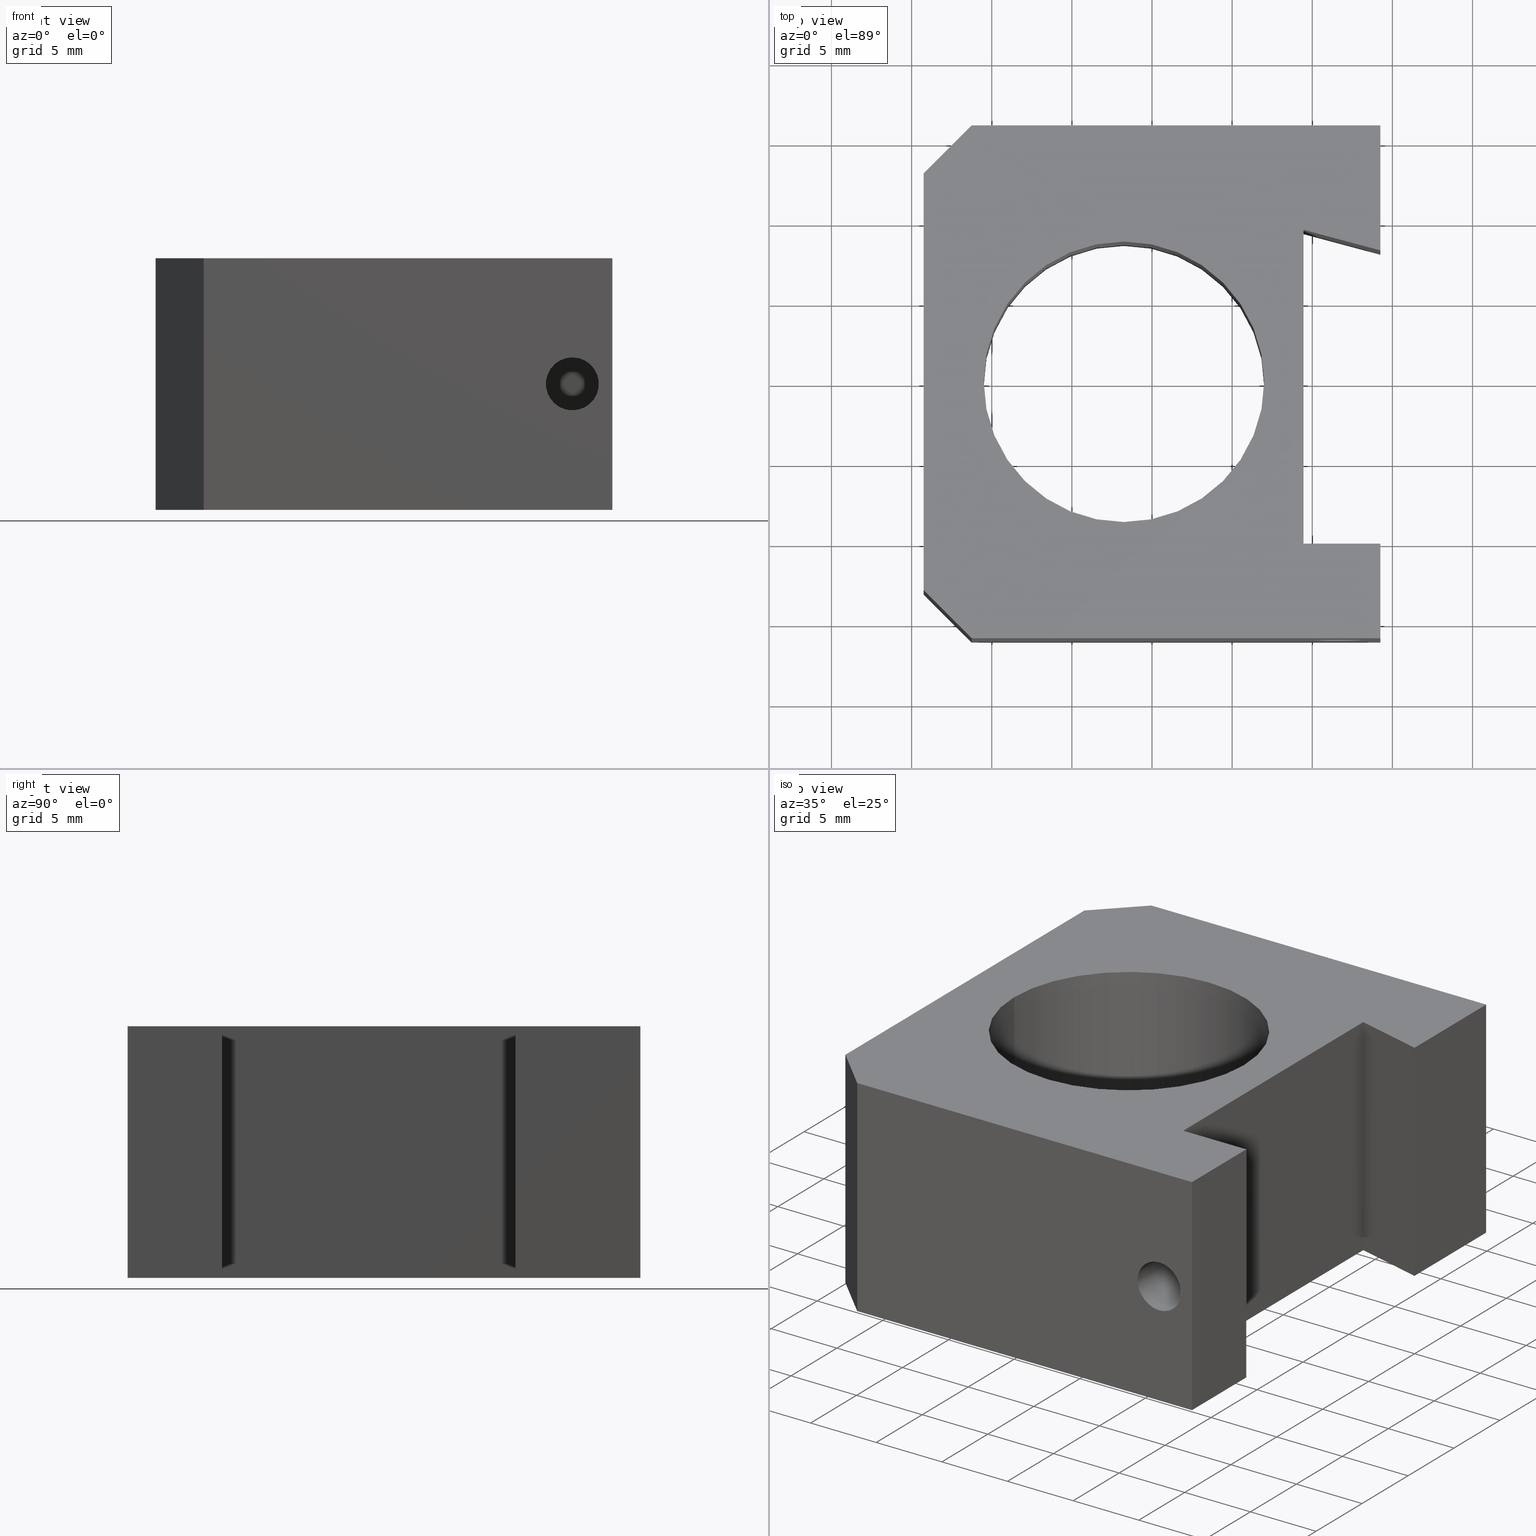
[diagram: canonical four-view strip — front | top / right | iso, engineering-drawing reading convention]
A machine part, canonical four-view strip (front | top / right | iso — engineering-drawing reading convention). The complete STEP part file that produces these views, byte-faithful:
ISO-10303-21;
HEADER;
FILE_DESCRIPTION (( 'STEP AP203' ),
    '1' );
FILE_NAME ('MF-OM.STEP',
    '2020-02-28T01:44:58',
    ( '΢���û�' ),
    ( '΢���й�' ),
    'SwSTEP 2.0',
    'SolidWorks 2016',
    '' );
FILE_SCHEMA (( 'CONFIG_CONTROL_DESIGN' ));
ENDSEC;

DATA;
#1 = EDGE_CURVE ( 'NONE', #502, #402, #55, .T. ) ;
#2 = AXIS2_PLACEMENT_3D ( 'NONE', #400, #137, #499 ) ;
#3 = LINE ( 'NONE', #6, #301 ) ;
#4 = CARTESIAN_POINT ( 'NONE',  ( 9.449999999999999300, -10.10000000000000100, 15.69999999999999900 ) ) ;
#5 = ORIENTED_EDGE ( 'NONE', *, *, #35, .F. ) ;
#6 = CARTESIAN_POINT ( 'NONE',  ( -10.49999999999999300, 1.071565949253933100E-015, 15.69999999999999900 ) ) ;
#7 = FACE_OUTER_BOUND ( 'NONE', #99, .T. ) ;
#8 = VERTEX_POINT ( 'NONE', #197 ) ;
#9 = PLANE ( 'NONE',  #529 ) ;
#10 = DIRECTION ( 'NONE',  ( 0.7071067811865459100, -0.7071067811865491300, 0.0000000000000000000 ) ) ;
#11 = EDGE_CURVE ( 'NONE', #452, #456, #274, .T. ) ;
#12 = DIRECTION ( 'NONE',  ( -1.000000000000000000, -0.0000000000000000000, -0.0000000000000000000 ) ) ;
#13 = ORIENTED_EDGE ( 'NONE', *, *, #389, .T. ) ;
#14 = CYLINDRICAL_SURFACE ( 'NONE', #68, 8.749999999999994700 ) ;
#15 = EDGE_CURVE ( 'NONE', #424, #200, #526, .T. ) ;
#16 = CARTESIAN_POINT ( 'NONE',  ( 9.449999999999999300, -10.10000000000000100, 15.69999999999999900 ) ) ;
#17 = DIRECTION ( 'NONE',  ( 1.000000000000000000, 0.0000000000000000000, 0.0000000000000000000 ) ) ;
#18 = CARTESIAN_POINT ( 'NONE',  ( 14.25000000000000000, -16.00000000000000000, 0.0000000000000000000 ) ) ;
#19 = FACE_BOUND ( 'NONE', #295, .T. ) ;
#20 = ORIENTED_EDGE ( 'NONE', *, *, #60, .F. ) ;
#21 = CARTESIAN_POINT ( 'NONE',  ( 11.75000000000000000, -16.00000000000000000, 9.499999999999994700 ) ) ;
#22 = CARTESIAN_POINT ( 'NONE',  ( -11.25000000000000500, -16.00000000000000000, 15.69999999999999900 ) ) ;
#23 = MECHANICAL_CONTEXT ( 'NONE', #245, 'mechanical' ) ;
#24 = ORIENTED_EDGE ( 'NONE', *, *, #261, .F. ) ;
#25 = DIRECTION ( 'NONE',  ( -0.7071067811865459100, 0.7071067811865491300, -0.0000000000000000000 ) ) ;
#26 = DIRECTION ( 'NONE',  ( -0.0000000000000000000, 0.0000000000000000000, 1.000000000000000000 ) ) ;
#27 = PERSON_AND_ORGANIZATION_ROLE ( 'classification_officer' ) ;
#28 = PLANE ( 'NONE',  #31 ) ;
#29 = ADVANCED_FACE ( 'NONE', ( #507 ), #565, .F. ) ;
#30 = VECTOR ( 'NONE', #17, 1000.000000000000000 ) ;
#31 = AXIS2_PLACEMENT_3D ( 'NONE', #201, #475, #156 ) ;
#32 = ADVANCED_FACE ( 'NONE', ( #394 ), #33, .F. ) ;
#33 = CYLINDRICAL_SURFACE ( 'NONE', #509, 1.649999999999994400 ) ;
#34 = ORIENTED_EDGE ( 'NONE', *, *, #240, .F. ) ;
#35 = EDGE_CURVE ( 'NONE', #402, #293, #145, .T. ) ;
#36 = ORIENTED_EDGE ( 'NONE', *, *, #226, .F. ) ;
#37 = AXIS2_PLACEMENT_3D ( 'NONE', #416, #513, #241 ) ;
#38 = DATE_AND_TIME ( #157, #265 ) ;
#39 = VECTOR ( 'NONE', #98, 1000.000000000000000 ) ;
#40 = CYLINDRICAL_SURFACE ( 'NONE', #95, 8.749999999999994700 ) ;
#41 = VERTEX_POINT ( 'NONE', #238 ) ;
#42 = EDGE_CURVE ( 'NONE', #548, #168, #369, .T. ) ;
#43 = VECTOR ( 'NONE', #561, 1000.000000000000000 ) ;
#44 = ORIENTED_EDGE ( 'NONE', *, *, #181, .F. ) ;
#45 = CARTESIAN_POINT ( 'NONE',  ( 11.75000000000000000, -16.00000000000000000, 7.849999999999999600 ) ) ;
#46 = DATE_AND_TIME ( #164, #281 ) ;
#47 = CARTESIAN_POINT ( 'NONE',  ( -11.24999999999998900, 16.00000000000000000, 0.0000000000000000000 ) ) ;
#48 = CARTESIAN_POINT ( 'NONE',  ( -1.749999999999999800, 0.0000000000000000000, 15.69999999999999900 ) ) ;
#49 = VECTOR ( 'NONE', #12, 1000.000000000000000 ) ;
#50 = CIRCLE ( 'NONE', #175, 1.649999999999995200 ) ;
#51 = ORIENTED_EDGE ( 'NONE', *, *, #89, .T. ) ;
#52 = CARTESIAN_POINT ( 'NONE',  ( -14.25000000000000000, -16.00000000000000000, 15.69999999999999900 ) ) ;
#53 = AXIS2_PLACEMENT_3D ( 'NONE', #223, #10, #545 ) ;
#54 = CARTESIAN_POINT ( 'NONE',  ( -10.49999999999999300, 1.071565949253933100E-015, 0.0000000000000000000 ) ) ;
#55 = CIRCLE ( 'NONE', #399, 8.749999999999994700 ) ;
#56 = CARTESIAN_POINT ( 'NONE',  ( -14.25000000000000500, 16.00000000000000000, 15.69999999999999900 ) ) ;
#57 = ORIENTED_EDGE ( 'NONE', *, *, #319, .F. ) ;
#58 = CARTESIAN_POINT ( 'NONE',  ( -14.25000000000000500, 12.99999999999999800, 0.0000000000000000000 ) ) ;
#59 = DIRECTION ( 'NONE',  ( -0.0000000000000000000, 0.0000000000000000000, 1.000000000000000000 ) ) ;
#60 = EDGE_CURVE ( 'NONE', #200, #160, #490, .T. ) ;
#61 = DIRECTION ( 'NONE',  ( -1.000000000000000000, -0.0000000000000000000, -0.0000000000000000000 ) ) ;
#62 = PERSON ( 'δָ��', 'δָ��', 'δָ��', ('δָ��'), ('δָ��'), ('δָ��') ) ;
#63 = CARTESIAN_POINT ( 'NONE',  ( 14.24999999999999500, 16.00000000000000000, 0.0000000000000000000 ) ) ;
#64 = DIRECTION ( 'NONE',  ( -1.626303258728256700E-016, 1.000000000000000000, -0.0000000000000000000 ) ) ;
#65 = PERSON_AND_ORGANIZATION ( #62, #354 ) ;
#66 = DIRECTION ( 'NONE',  ( -0.0000000000000000000, -0.0000000000000000000, 1.000000000000000000 ) ) ;
#67 = APPLICATION_CONTEXT ( 'configuration controlled 3d designs of mechanical parts and assemblies' ) ;
#68 = AXIS2_PLACEMENT_3D ( 'NONE', #183, #368, #323 ) ;
#69 = ORIENTED_EDGE ( 'NONE', *, *, #556, .T. ) ;
#70 = CARTESIAN_POINT ( 'NONE',  ( -14.25000000000000500, 12.99999999999999800, 15.69999999999999900 ) ) ;
#71 = APPROVAL_STATUS ( 'not_yet_approved' ) ;
#72 = ORIENTED_EDGE ( 'NONE', *, *, #444, .F. ) ;
#73 = LINE ( 'NONE', #136, #522 ) ;
#74 = CARTESIAN_POINT ( 'NONE',  ( 9.449999999999997500, 9.486156123669372800, 0.0000000000000000000 ) ) ;
#75 = EDGE_LOOP ( 'NONE', ( #407, #239 ) ) ;
#76 = ADVANCED_FACE ( 'NONE', ( #19, #387 ), #279, .T. ) ;
#77 = ORIENTED_EDGE ( 'NONE', *, *, #15, .F. ) ;
#78 = ADVANCED_FACE ( 'NONE', ( #133 ), #370, .F. ) ;
#79 = VERTEX_POINT ( 'NONE', #18 ) ;
#80 = LOCAL_TIME ( 9, 44, 58.00000000000000000, #191 ) ;
#81 = ORIENTED_EDGE ( 'NONE', *, *, #383, .T. ) ;
#82 = FACE_OUTER_BOUND ( 'NONE', #357, .T. ) ;
#83 = VERTEX_POINT ( 'NONE', #139 ) ;
#84 = ORIENTED_EDGE ( 'NONE', *, *, #420, .T. ) ;
#85 = ORIENTED_EDGE ( 'NONE', *, *, #296, .F. ) ;
#86 = AXIS2_PLACEMENT_3D ( 'NONE', #550, #187, #506 ) ;
#87 = ORIENTED_EDGE ( 'NONE', *, *, #539, .F. ) ;
#88 = CARTESIAN_POINT ( 'NONE',  ( -14.25000000000000000, -16.00000000000000000, 0.0000000000000000000 ) ) ;
#89 = EDGE_CURVE ( 'NONE', #350, #293, #125, .T. ) ;
#90 = CALENDAR_DATE ( 2020, 28, 2 ) ;
#91 = CARTESIAN_POINT ( 'NONE',  ( 14.25000000000000000, -10.10000000000000100, 15.69999999999999900 ) ) ;
#92 = LINE ( 'NONE', #422, #211 ) ;
#93 = ORIENTED_EDGE ( 'NONE', *, *, #359, .F. ) ;
#94 = PLANE ( 'NONE',  #2 ) ;
#95 = AXIS2_PLACEMENT_3D ( 'NONE', #48, #449, #307 ) ;
#96 = VECTOR ( 'NONE', #237, 1000.000000000000000 ) ;
#97 = ORIENTED_EDGE ( 'NONE', *, *, #489, .T. ) ;
#98 = DIRECTION ( 'NONE',  ( -0.0000000000000000000, -0.0000000000000000000, -1.000000000000000000 ) ) ;
#99 = EDGE_LOOP ( 'NONE', ( #431, #531, #371, #537 ) ) ;
#100 = VERTEX_POINT ( 'NONE', #555 ) ;
#101 = DIRECTION ( 'NONE',  ( -0.0000000000000000000, -1.000000000000000000, -0.0000000000000000000 ) ) ;
#102 = DIRECTION ( 'NONE',  ( 0.0000000000000000000, -0.0000000000000000000, 1.000000000000000000 ) ) ;
#103 = CARTESIAN_POINT ( 'NONE',  ( -10.49999999999999600, 1.071565949253933500E-015, 15.69999999999999900 ) ) ;
#104 = PRODUCT_DEFINITION_SHAPE ( 'NONE', 'NONE',  #533 ) ;
#105 = CARTESIAN_POINT ( 'NONE',  ( -14.25000000000000000, -16.00000000000000000, 15.69999999999999900 ) ) ;
#106 = DIRECTION ( 'NONE',  ( -0.9659258262890692000, 0.2588190451025178000, 0.0000000000000000000 ) ) ;
#107 = CARTESIAN_POINT ( 'NONE',  ( 11.75000000000000000, -16.00000000000000000, 6.200000000000004600 ) ) ;
#108 = DATE_AND_TIME ( #218, #344 ) ;
#109 = CARTESIAN_POINT ( 'NONE',  ( 14.24999999999999500, 16.00000000000000000, 15.69999999999999900 ) ) ;
#110 = FACE_OUTER_BOUND ( 'NONE', #298, .T. ) ;
#111 = DIRECTION ( 'NONE',  ( -0.0000000000000000000, 0.0000000000000000000, 1.000000000000000000 ) ) ;
#112 = CARTESIAN_POINT ( 'NONE',  ( 9.449999999999999300, -10.10000000000000100, 0.0000000000000000000 ) ) ;
#113 = DIRECTION ( 'NONE',  ( 1.000000000000000000, 0.0000000000000000000, 0.0000000000000000000 ) ) ;
#114 = VECTOR ( 'NONE', #147, 1000.000000000000000 ) ;
#115 = APPROVAL_STATUS ( 'not_yet_approved' ) ;
#116 = CARTESIAN_POINT ( 'NONE',  ( 14.25000000000000000, 8.199999999999999300, 0.0000000000000000000 ) ) ;
#117 = ORIENTED_EDGE ( 'NONE', *, *, #1, .F. ) ;
#118 = DIRECTION ( 'NONE',  ( 0.0000000000000000000, -1.000000000000000000, 0.0000000000000000000 ) ) ;
#119 = DIRECTION ( 'NONE',  ( 1.000000000000000000, 0.0000000000000000000, 0.0000000000000000000 ) ) ;
#120 = ADVANCED_FACE ( 'NONE', ( #356 ), #525, .F. ) ;
#121 = AXIS2_PLACEMENT_3D ( 'NONE', #52, #411, #102 ) ;
#122 = LINE ( 'NONE', #109, #250 ) ;
#123 = PERSON_AND_ORGANIZATION ( #62, #354 ) ;
#124 = EDGE_CURVE ( 'NONE', #41, #311, #467, .T. ) ;
#125 = CIRCLE ( 'NONE', #433, 8.749999999999998200 ) ;
#126 = ORIENTED_EDGE ( 'NONE', *, *, #89, .F. ) ;
#127 = VECTOR ( 'NONE', #514, 1000.000000000000000 ) ;
#128 =( GEOMETRIC_REPRESENTATION_CONTEXT ( 3 ) GLOBAL_UNCERTAINTY_ASSIGNED_CONTEXT ( ( #472 ) ) GLOBAL_UNIT_ASSIGNED_CONTEXT ( ( #326, #421, #152 ) ) REPRESENTATION_CONTEXT ( 'NONE', 'WORKASPACE' ) );
#129 = ORIENTED_EDGE ( 'NONE', *, *, #329, .F. ) ;
#130 = ORIENTED_EDGE ( 'NONE', *, *, #489, .F. ) ;
#131 = LINE ( 'NONE', #414, #488 ) ;
#132 = CC_DESIGN_PERSON_AND_ORGANIZATION_ASSIGNMENT ( #530, #27, ( #255 ) ) ;
#133 = FACE_OUTER_BOUND ( 'NONE', #544, .T. ) ;
#134 = DIRECTION ( 'NONE',  ( 8.856885776992442400E-017, -1.000000000000000000, 0.0000000000000000000 ) ) ;
#135 = ORIENTED_EDGE ( 'NONE', *, *, #208, .T. ) ;
#136 = CARTESIAN_POINT ( 'NONE',  ( 9.449999999999997500, 9.486156123669372800, 15.69999999999999900 ) ) ;
#137 = DIRECTION ( 'NONE',  ( -0.0000000000000000000, 0.0000000000000000000, 1.000000000000000000 ) ) ;
#138 = CC_DESIGN_PERSON_AND_ORGANIZATION_ASSIGNMENT ( #65, #570, ( #377 ) ) ;
#139 = CARTESIAN_POINT ( 'NONE',  ( -14.25000000000000000, -12.99999999999999100, 15.69999999999999900 ) ) ;
#140 = CARTESIAN_POINT ( 'NONE',  ( 6.999999999999993800, 0.0000000000000000000, 0.0000000000000000000 ) ) ;
#141 = FACE_OUTER_BOUND ( 'NONE', #388, .T. ) ;
#142 = LINE ( 'NONE', #88, #30 ) ;
#143 = CARTESIAN_POINT ( 'NONE',  ( 9.449999999999999300, -10.10000000000000100, 0.0000000000000000000 ) ) ;
#144 = DIRECTION ( 'NONE',  ( 0.2588190451025178000, 0.9659258262890692000, 0.0000000000000000000 ) ) ;
#145 = LINE ( 'NONE', #373, #258 ) ;
#146 = VERTEX_POINT ( 'NONE', #340 ) ;
#147 = DIRECTION ( 'NONE',  ( -1.626303258728256700E-016, 1.000000000000000000, -0.0000000000000000000 ) ) ;
#148 = CARTESIAN_POINT ( 'NONE',  ( -13.62499999999997000, 13.62500000000003200, 15.69999999999999900 ) ) ;
#149 = DIRECTION ( 'NONE',  ( -1.626303258728256700E-016, 1.000000000000000000, -0.0000000000000000000 ) ) ;
#150 = DIRECTION ( 'NONE',  ( 1.000000000000000000, 0.0000000000000000000, 0.0000000000000000000 ) ) ;
#151 = DIRECTION ( 'NONE',  ( -0.0000000000000000000, -1.000000000000000000, -0.0000000000000000000 ) ) ;
#152 =( NAMED_UNIT ( * ) SI_UNIT ( $, .STERADIAN. ) SOLID_ANGLE_UNIT ( ) );
#153 = ORIENTED_EDGE ( 'NONE', *, *, #181, .T. ) ;
#154 = DIRECTION ( 'NONE',  ( 0.0000000000000000000, 0.0000000000000000000, -1.000000000000000000 ) ) ;
#155 = PERSON_AND_ORGANIZATION_ROLE ( 'creator' ) ;
#156 = DIRECTION ( 'NONE',  ( -1.626303258728256700E-016, 1.000000000000000000, 0.0000000000000000000 ) ) ;
#157 = CALENDAR_DATE ( 2020, 28, 2 ) ;
#158 = LINE ( 'NONE', #105, #380 ) ;
#159 = LINE ( 'NONE', #235, #480 ) ;
#160 = VERTEX_POINT ( 'NONE', #249 ) ;
#161 = ADVANCED_FACE ( 'NONE', ( #236 ), #28, .F. ) ;
#162 = VECTOR ( 'NONE', #66, 1000.000000000000000 ) ;
#163 = ORIENTED_EDGE ( 'NONE', *, *, #485, .F. ) ;
#164 = CALENDAR_DATE ( 2020, 28, 2 ) ;
#165 = APPROVAL ( #71, 'δָ��' ) ;
#166 = CIRCLE ( 'NONE', #86, 8.749999999999998200 ) ;
#167 = LINE ( 'NONE', #260, #381 ) ;
#168 = VERTEX_POINT ( 'NONE', #74 ) ;
#169 = VECTOR ( 'NONE', #333, 1000.000000000000000 ) ;
#170 = VERTEX_POINT ( 'NONE', #376 ) ;
#171 = EDGE_CURVE ( 'NONE', #548, #41, #579, .T. ) ;
#172 = PERSON_AND_ORGANIZATION ( #62, #354 ) ;
#173 = DIRECTION ( 'NONE',  ( -0.0000000000000000000, -0.0000000000000000000, 1.000000000000000000 ) ) ;
#174 = ORIENTED_EDGE ( 'NONE', *, *, #11, .F. ) ;
#175 = AXIS2_PLACEMENT_3D ( 'NONE', #317, #101, #219 ) ;
#176 = DIRECTION ( 'NONE',  ( -1.000000000000000000, -8.856885776992442400E-017, 0.0000000000000000000 ) ) ;
#177 = VECTOR ( 'NONE', #504, 1000.000000000000000 ) ;
#178 = ORIENTED_EDGE ( 'NONE', *, *, #436, .T. ) ;
#179 = LINE ( 'NONE', #360, #289 ) ;
#180 = VERTEX_POINT ( 'NONE', #568 ) ;
#181 = EDGE_CURVE ( 'NONE', #160, #216, #345, .T. ) ;
#182 = ORIENTED_EDGE ( 'NONE', *, *, #319, .T. ) ;
#183 = CARTESIAN_POINT ( 'NONE',  ( -1.749999999999999800, 0.0000000000000000000, 15.69999999999999900 ) ) ;
#184 = ORIENTED_EDGE ( 'NONE', *, *, #485, .T. ) ;
#185 = DIRECTION ( 'NONE',  ( 1.626303258728256700E-016, -1.000000000000000000, 0.0000000000000000000 ) ) ;
#186 = ORIENTED_EDGE ( 'NONE', *, *, #42, .F. ) ;
#187 = DIRECTION ( 'NONE',  ( -0.0000000000000000000, -0.0000000000000000000, 1.000000000000000000 ) ) ;
#188 = CARTESIAN_POINT ( 'NONE',  ( 14.24999999999999500, 16.00000000000000000, 0.0000000000000000000 ) ) ;
#189 = DIRECTION ( 'NONE',  ( 1.626303258728256700E-016, -1.000000000000000000, 0.0000000000000000000 ) ) ;
#190 = DIRECTION ( 'NONE',  ( -0.9659258262890692000, 0.2588190451025178000, -0.0000000000000000000 ) ) ;
#191 = COORDINATED_UNIVERSAL_TIME_OFFSET ( 8, 0, .AHEAD. ) ;
#192 = CARTESIAN_POINT ( 'NONE',  ( -11.25000000000000500, -16.00000000000000000, 15.69999999999999900 ) ) ;
#193 = DIRECTION ( 'NONE',  ( -0.0000000000000000000, 0.0000000000000000000, -1.000000000000000000 ) ) ;
#194 = APPLICATION_PROTOCOL_DEFINITION ( 'international standard', 'config_control_design', 1994, #245 ) ;
#195 = EDGE_LOOP ( 'NONE', ( #184, #174, #34, #182 ) ) ;
#196 = CARTESIAN_POINT ( 'NONE',  ( -11.24999999999998900, 16.00000000000000000, 15.69999999999999900 ) ) ;
#197 = CARTESIAN_POINT ( 'NONE',  ( 11.75000000000000000, -10.10000000000000100, 6.200000000000004600 ) ) ;
#198 = APPROVAL_STATUS ( 'not_yet_approved' ) ;
#199 = VECTOR ( 'NONE', #273, 1000.000000000000000 ) ;
#200 = VERTEX_POINT ( 'NONE', #196 ) ;
#201 = CARTESIAN_POINT ( 'NONE',  ( -14.25000000000000500, 16.00000000000000000, 15.69999999999999900 ) ) ;
#202 = EDGE_LOOP ( 'NONE', ( #206, #36, #440, #81 ) ) ;
#203 = ORIENTED_EDGE ( 'NONE', *, *, #208, .F. ) ;
#204 = ADVANCED_FACE ( 'NONE', ( #110 ), #563, .F. ) ;
#205 = CARTESIAN_POINT ( 'NONE',  ( -1.749999999999999800, 0.0000000000000000000, 15.69999999999999900 ) ) ;
#206 = ORIENTED_EDGE ( 'NONE', *, *, #436, .F. ) ;
#207 = AXIS2_PLACEMENT_3D ( 'NONE', #233, #144, #106 ) ;
#208 = EDGE_CURVE ( 'NONE', #538, #304, #92, .T. ) ;
#209 = LOCAL_TIME ( 9, 44, 58.00000000000000000, #327 ) ;
#210 = EDGE_CURVE ( 'NONE', #318, #146, #331, .T. ) ;
#211 = VECTOR ( 'NONE', #25, 1000.000000000000000 ) ;
#212 = ORIENTED_EDGE ( 'NONE', *, *, #296, .T. ) ;
#213 = LINE ( 'NONE', #188, #199 ) ;
#214 = ADVANCED_BREP_SHAPE_REPRESENTATION ( 'MF-OM', ( #486, #469 ), #128 ) ;
#215 = ORIENTED_EDGE ( 'NONE', *, *, #60, .T. ) ;
#216 = VERTEX_POINT ( 'NONE', #243 ) ;
#217 = VECTOR ( 'NONE', #64, 1000.000000000000000 ) ;
#218 = CALENDAR_DATE ( 2020, 28, 2 ) ;
#219 = DIRECTION ( 'NONE',  ( 0.0000000000000000000, 0.0000000000000000000, -1.000000000000000000 ) ) ;
#220 = VECTOR ( 'NONE', #518, 1000.000000000000000 ) ;
#221 = DIRECTION ( 'NONE',  ( 8.856885776992442400E-017, -1.000000000000000000, 0.0000000000000000000 ) ) ;
#222 = VECTOR ( 'NONE', #150, 1000.000000000000000 ) ;
#223 = CARTESIAN_POINT ( 'NONE',  ( -14.25000000000000500, 12.99999999999999800, 15.69999999999999900 ) ) ;
#224 = APPROVAL ( #198, 'δָ��' ) ;
#225 = EDGE_LOOP ( 'NONE', ( #117, #178, #51, #5 ) ) ;
#226 = EDGE_CURVE ( 'NONE', #402, #502, #487, .T. ) ;
#227 = CARTESIAN_POINT ( 'NONE',  ( -14.25000000000000500, 16.00000000000000000, 15.69999999999999900 ) ) ;
#228 = VECTOR ( 'NONE', #277, 1000.000000000000000 ) ;
#229 = CARTESIAN_POINT ( 'NONE',  ( 11.75000000000000000, -10.10000000000000100, 9.499999999999994700 ) ) ;
#230 = AXIS2_PLACEMENT_3D ( 'NONE', #396, #494, #541 ) ;
#231 = EDGE_CURVE ( 'NONE', #180, #538, #244, .T. ) ;
#232 = PERSON_AND_ORGANIZATION ( #62, #354 ) ;
#233 = CARTESIAN_POINT ( 'NONE',  ( 9.449999999999997500, 9.486156123669372800, 0.0000000000000000000 ) ) ;
#234 = DIRECTION ( 'NONE',  ( -1.000000000000000000, -1.626303258728256700E-016, 0.0000000000000000000 ) ) ;
#235 = CARTESIAN_POINT ( 'NONE',  ( -14.25000000000000500, 16.00000000000000000, 0.0000000000000000000 ) ) ;
#236 = FACE_OUTER_BOUND ( 'NONE', #536, .T. ) ;
#237 = DIRECTION ( 'NONE',  ( 0.7071067811865491300, 0.7071067811865459100, -0.0000000000000000000 ) ) ;
#238 = CARTESIAN_POINT ( 'NONE',  ( 14.25000000000000000, 8.199999999999999300, 15.69999999999999900 ) ) ;
#239 = ORIENTED_EDGE ( 'NONE', *, *, #267, .T. ) ;
#240 = EDGE_CURVE ( 'NONE', #170, #452, #347, .T. ) ;
#241 = DIRECTION ( 'NONE',  ( 0.0000000000000000000, -0.0000000000000000000, -1.000000000000000000 ) ) ;
#242 = PRODUCT ( 'MF-OM', 'MF-OM', '', ( #23 ) ) ;
#243 = CARTESIAN_POINT ( 'NONE',  ( -14.25000000000000500, 12.99999999999999800, 0.0000000000000000000 ) ) ;
#244 = LINE ( 'NONE', #192, #127 ) ;
#245 = APPLICATION_CONTEXT ( 'configuration controlled 3d designs of mechanical parts and assemblies' ) ;
#246 = DIRECTION ( 'NONE',  ( -0.0000000000000000000, -1.000000000000000000, -0.0000000000000000000 ) ) ;
#247 = ORIENTED_EDGE ( 'NONE', *, *, #503, .T. ) ;
#248 = PERSON_AND_ORGANIZATION_ROLE ( 'creator' ) ;
#249 = CARTESIAN_POINT ( 'NONE',  ( -14.25000000000000500, 12.99999999999999800, 15.69999999999999900 ) ) ;
#250 = VECTOR ( 'NONE', #149, 1000.000000000000000 ) ;
#251 = ADVANCED_FACE ( 'NONE', ( #7 ), #278, .F. ) ;
#252 = VECTOR ( 'NONE', #190, 999.9999999999998900 ) ;
#253 = ORIENTED_EDGE ( 'NONE', *, *, #543, .T. ) ;
#254 = ORIENTED_EDGE ( 'NONE', *, *, #462, .F. ) ;
#255 = SECURITY_CLASSIFICATION ( '', '', #286 ) ;
#256 = FACE_BOUND ( 'NONE', #443, .T. ) ;
#257 = FACE_OUTER_BOUND ( 'NONE', #225, .T. ) ;
#258 = VECTOR ( 'NONE', #282, 1000.000000000000000 ) ;
#259 = ORIENTED_EDGE ( 'NONE', *, *, #210, .F. ) ;
#260 = CARTESIAN_POINT ( 'NONE',  ( 9.449999999999997500, 9.486156123669372800, 0.0000000000000000000 ) ) ;
#261 = EDGE_CURVE ( 'NONE', #548, #428, #470, .T. ) ;
#262 = ORIENTED_EDGE ( 'NONE', *, *, #267, .F. ) ;
#263 = CARTESIAN_POINT ( 'NONE',  ( 14.25000000000000000, -10.10000000000000100, 0.0000000000000000000 ) ) ;
#264 = CARTESIAN_POINT ( 'NONE',  ( 9.449999999999997500, 9.486156123669372800, 0.0000000000000000000 ) ) ;
#265 = LOCAL_TIME ( 9, 44, 58.00000000000000000, #390 ) ;
#266 = VECTOR ( 'NONE', #269, 1000.000000000000000 ) ;
#267 = EDGE_CURVE ( 'NONE', #318, #8, #454, .T. ) ;
#268 = VECTOR ( 'NONE', #553, 1000.000000000000000 ) ;
#269 = DIRECTION ( 'NONE',  ( 0.0000000000000000000, 0.0000000000000000000, 1.000000000000000000 ) ) ;
#270 = ORIENTED_EDGE ( 'NONE', *, *, #349, .F. ) ;
#271 = PLANE ( 'NONE',  #121 ) ;
#272 = DIRECTION ( 'NONE',  ( 1.000000000000000000, 0.0000000000000000000, 0.0000000000000000000 ) ) ;
#273 = DIRECTION ( 'NONE',  ( -1.626303258728256700E-016, 1.000000000000000000, -0.0000000000000000000 ) ) ;
#274 = LINE ( 'NONE', #423, #162 ) ;
#275 = ORIENTED_EDGE ( 'NONE', *, *, #516, .T. ) ;
#276 = CARTESIAN_POINT ( 'NONE',  ( 11.75000000000000000, -10.10000000000000100, 7.849999999999999600 ) ) ;
#277 = DIRECTION ( 'NONE',  ( -0.0000000000000000000, -1.000000000000000000, -0.0000000000000000000 ) ) ;
#278 = PLANE ( 'NONE',  #294 ) ;
#279 = PLANE ( 'NONE',  #341 ) ;
#280 = CARTESIAN_POINT ( 'NONE',  ( 11.75000000000000000, -16.00000000000000000, 6.200000000000003700 ) ) ;
#281 = LOCAL_TIME ( 9, 44, 58.00000000000000000, #398 ) ;
#282 = DIRECTION ( 'NONE',  ( -0.0000000000000000000, -0.0000000000000000000, 1.000000000000000000 ) ) ;
#283 = DIRECTION ( 'NONE',  ( 1.000000000000000000, 0.0000000000000000000, 0.0000000000000000000 ) ) ;
#284 = CARTESIAN_POINT ( 'NONE',  ( -1.749999999999999800, 0.0000000000000000000, 0.0000000000000000000 ) ) ;
#285 = ORIENTED_EDGE ( 'NONE', *, *, #409, .T. ) ;
#286 = SECURITY_CLASSIFICATION_LEVEL ( 'unclassified' ) ;
#287 = CARTESIAN_POINT ( 'NONE',  ( 9.449999999999997500, 9.486156123669372800, 15.69999999999999900 ) ) ;
#288 = FACE_OUTER_BOUND ( 'NONE', #385, .T. ) ;
#289 = VECTOR ( 'NONE', #447, 1000.000000000000000 ) ;
#290 = ORIENTED_EDGE ( 'NONE', *, *, #383, .F. ) ;
#291 = EDGE_CURVE ( 'NONE', #216, #424, #335, .T. ) ;
#292 = ADVANCED_FACE ( 'NONE', ( #439 ), #324, .F. ) ;
#293 = VERTEX_POINT ( 'NONE', #461 ) ;
#294 = AXIS2_PLACEMENT_3D ( 'NONE', #560, #512, #189 ) ;
#295 = EDGE_LOOP ( 'NONE', ( #290, #126 ) ) ;
#296 = EDGE_CURVE ( 'NONE', #79, #452, #213, .T. ) ;
#297 = APPROVAL_DATE_TIME ( #417, #224 ) ;
#298 = EDGE_LOOP ( 'NONE', ( #262, #315, #336, #87 ) ) ;
#299 = VECTOR ( 'NONE', #365, 1000.000000000000000 ) ;
#300 = ORIENTED_EDGE ( 'NONE', *, *, #543, .F. ) ;
#301 = VECTOR ( 'NONE', #310, 1000.000000000000000 ) ;
#302 = ORIENTED_EDGE ( 'NONE', *, *, #231, .F. ) ;
#303 = ORIENTED_EDGE ( 'NONE', *, *, #124, .F. ) ;
#304 = VERTEX_POINT ( 'NONE', #367 ) ;
#305 = EDGE_CURVE ( 'NONE', #160, #83, #580, .T. ) ;
#306 = APPROVAL_PERSON_ORGANIZATION ( #437, #224, #519 ) ;
#307 = DIRECTION ( 'NONE',  ( 1.000000000000000000, 0.0000000000000000000, 0.0000000000000000000 ) ) ;
#308 = CC_DESIGN_SECURITY_CLASSIFICATION ( #255, ( #377 ) ) ;
#309 = VECTOR ( 'NONE', #564, 1000.000000000000000 ) ;
#310 = DIRECTION ( 'NONE',  ( -0.0000000000000000000, -0.0000000000000000000, 1.000000000000000000 ) ) ;
#311 = VERTEX_POINT ( 'NONE', #505 ) ;
#312 = CARTESIAN_POINT ( 'NONE',  ( 14.24999999999999500, 16.00000000000000000, 0.0000000000000000000 ) ) ;
#313 = LINE ( 'NONE', #143, #299 ) ;
#314 = CC_DESIGN_PERSON_AND_ORGANIZATION_ASSIGNMENT ( #172, #248, ( #377 ) ) ;
#315 = ORIENTED_EDGE ( 'NONE', *, *, #210, .T. ) ;
#316 = ORIENTED_EDGE ( 'NONE', *, *, #124, .T. ) ;
#317 = CARTESIAN_POINT ( 'NONE',  ( 11.75000000000000000, -16.00000000000000000, 7.849999999999999600 ) ) ;
#318 = VERTEX_POINT ( 'NONE', #229 ) ;
#319 = EDGE_CURVE ( 'NONE', #170, #474, #313, .T. ) ;
#320 = ORIENTED_EDGE ( 'NONE', *, *, #231, .T. ) ;
#321 = CARTESIAN_POINT ( 'NONE',  ( 14.25000000000000000, -16.00000000000000000, 15.69999999999999900 ) ) ;
#322 = AXIS2_PLACEMENT_3D ( 'NONE', #276, #554, #508 ) ;
#323 = DIRECTION ( 'NONE',  ( 1.000000000000000000, 0.0000000000000000000, 0.0000000000000000000 ) ) ;
#324 = PLANE ( 'NONE',  #207 ) ;
#325 = DIRECTION ( 'NONE',  ( 1.000000000000000000, 0.0000000000000000000, 0.0000000000000000000 ) ) ;
#326 =( LENGTH_UNIT ( ) NAMED_UNIT ( * ) SI_UNIT ( .MILLI., .METRE. ) );
#327 = COORDINATED_UNIVERSAL_TIME_OFFSET ( 8, 0, .AHEAD. ) ;
#328 = CARTESIAN_POINT ( 'NONE',  ( 9.449999999999997500, 9.486156123669372800, 0.0000000000000000000 ) ) ;
#329 = EDGE_CURVE ( 'NONE', #8, #318, #569, .T. ) ;
#330 = CARTESIAN_POINT ( 'NONE',  ( 14.24999999999999500, 16.00000000000000000, 15.69999999999999900 ) ) ;
#331 = LINE ( 'NONE', #21, #309 ) ;
#332 = ORIENTED_EDGE ( 'NONE', *, *, #305, .T. ) ;
#333 = DIRECTION ( 'NONE',  ( 0.0000000000000000000, 0.0000000000000000000, 1.000000000000000000 ) ) ;
#334 = PERSON_AND_ORGANIZATION_ROLE ( 'design_owner' ) ;
#335 = LINE ( 'NONE', #58, #96 ) ;
#336 = ORIENTED_EDGE ( 'NONE', *, *, #478, .T. ) ;
#337 = CARTESIAN_POINT ( 'NONE',  ( 11.75000000000000000, -16.00000000000000000, 7.849999999999999600 ) ) ;
#338 = DATE_TIME_ROLE ( 'classification_date' ) ;
#339 = ORIENTED_EDGE ( 'NONE', *, *, #451, .T. ) ;
#340 = CARTESIAN_POINT ( 'NONE',  ( 11.75000000000000000, -16.00000000000000000, 9.499999999999994700 ) ) ;
#341 = AXIS2_PLACEMENT_3D ( 'NONE', #415, #59, #325 ) ;
#342 = ADVANCED_FACE ( 'NONE', ( #427, #82 ), #271, .F. ) ;
#343 = FACE_OUTER_BOUND ( 'NONE', #195, .T. ) ;
#344 = LOCAL_TIME ( 9, 44, 58.00000000000000000, #463 ) ;
#345 = LINE ( 'NONE', #70, #220 ) ;
#346 = ORIENTED_EDGE ( 'NONE', *, *, #240, .T. ) ;
#347 = LINE ( 'NONE', #112, #222 ) ;
#348 = CC_DESIGN_APPROVAL ( #224, ( #377 ) ) ;
#349 = EDGE_CURVE ( 'NONE', #83, #180, #532, .T. ) ;
#350 = VERTEX_POINT ( 'NONE', #103 ) ;
#351 = LINE ( 'NONE', #107, #228 ) ;
#352 = DESIGN_CONTEXT ( 'detailed design', #67, 'design' ) ;
#353 = AXIS2_PLACEMENT_3D ( 'NONE', #337, #246, #471 ) ;
#354 = ORGANIZATION ( 'δָ��', 'δָ��', '' ) ;
#355 = CC_DESIGN_APPROVAL ( #165, ( #255 ) ) ;
#356 = FACE_OUTER_BOUND ( 'NONE', #476, .T. ) ;
#357 = EDGE_LOOP ( 'NONE', ( #468, #320, #247, #582 ) ) ;
#358 = DIRECTION ( 'NONE',  ( -0.0000000000000000000, -1.000000000000000000, -0.0000000000000000000 ) ) ;
#359 = EDGE_CURVE ( 'NONE', #100, #200, #405, .T. ) ;
#360 = CARTESIAN_POINT ( 'NONE',  ( -14.25000000000000500, 16.00000000000000000, 0.0000000000000000000 ) ) ;
#361 = ORIENTED_EDGE ( 'NONE', *, *, #539, .T. ) ;
#362 = CLOSED_SHELL ( 'NONE', ( #204, #524, #251, #78, #120, #161, #342, #76, #432, #29, #382, #292, #575, #435, #481, #32 ) ) ;
#363 = CARTESIAN_POINT ( 'NONE',  ( 14.24999999999999500, 16.00000000000000000, 15.69999999999999900 ) ) ;
#364 = VECTOR ( 'NONE', #366, 1000.000000000000000 ) ;
#365 = DIRECTION ( 'NONE',  ( -0.0000000000000000000, -0.0000000000000000000, 1.000000000000000000 ) ) ;
#366 = DIRECTION ( 'NONE',  ( -0.0000000000000000000, -0.0000000000000000000, -1.000000000000000000 ) ) ;
#367 = CARTESIAN_POINT ( 'NONE',  ( -14.25000000000000000, -12.99999999999999100, 0.0000000000000000000 ) ) ;
#368 = DIRECTION ( 'NONE',  ( -0.0000000000000000000, -0.0000000000000000000, 1.000000000000000000 ) ) ;
#369 = LINE ( 'NONE', #328, #252 ) ;
#370 = PLANE ( 'NONE',  #459 ) ;
#371 = ORIENTED_EDGE ( 'NONE', *, *, #261, .T. ) ;
#372 = DIRECTION ( 'NONE',  ( 1.000000000000000000, 0.0000000000000000000, 0.0000000000000000000 ) ) ;
#373 = CARTESIAN_POINT ( 'NONE',  ( 6.999999999999993800, 0.0000000000000000000, 15.69999999999999900 ) ) ;
#374 = CARTESIAN_POINT ( 'NONE',  ( -11.24999999999998900, 16.00000000000000000, 15.69999999999999900 ) ) ;
#375 = APPLICATION_PROTOCOL_DEFINITION ( 'international standard', 'config_control_design', 1994, #67 ) ;
#376 = CARTESIAN_POINT ( 'NONE',  ( 9.449999999999999300, -10.10000000000000100, 0.0000000000000000000 ) ) ;
#377 = PRODUCT_DEFINITION_FORMATION_WITH_SPECIFIED_SOURCE ( '�κ�', '', #242, .NOT_KNOWN. ) ;
#378 = APPROVAL_ROLE ( '' ) ;
#379 = DIRECTION ( 'NONE',  ( 0.0000000000000000000, -0.0000000000000000000, -1.000000000000000000 ) ) ;
#380 = VECTOR ( 'NONE', #272, 1000.000000000000000 ) ;
#381 = VECTOR ( 'NONE', #173, 1000.000000000000000 ) ;
#382 = ADVANCED_FACE ( 'NONE', ( #288 ), #453, .F. ) ;
#383 = EDGE_CURVE ( 'NONE', #293, #350, #166, .T. ) ;
#384 = DIRECTION ( 'NONE',  ( -0.0000000000000000000, -0.0000000000000000000, 1.000000000000000000 ) ) ;
#385 = EDGE_LOOP ( 'NONE', ( #20, #77, #438, #44 ) ) ;
#386 = AXIS2_PLACEMENT_3D ( 'NONE', #418, #111, #372 ) ;
#387 = FACE_OUTER_BOUND ( 'NONE', #445, .T. ) ;
#388 = EDGE_LOOP ( 'NONE', ( #24, #534, #393, #346, #85, #429, #135, #408, #566, #300 ) ) ;
#389 = EDGE_CURVE ( 'NONE', #304, #83, #391, .T. ) ;
#390 = COORDINATED_UNIVERSAL_TIME_OFFSET ( 8, 0, .AHEAD. ) ;
#391 = LINE ( 'NONE', #496, #266 ) ;
#392 = FACE_OUTER_BOUND ( 'NONE', #202, .T. ) ;
#393 = ORIENTED_EDGE ( 'NONE', *, *, #528, .T. ) ;
#394 = FACE_OUTER_BOUND ( 'NONE', #442, .T. ) ;
#395 = ORIENTED_EDGE ( 'NONE', *, *, #11, .T. ) ;
#396 = CARTESIAN_POINT ( 'NONE',  ( 11.75000000000000000, -10.10000000000000100, 7.849999999999999600 ) ) ;
#397 = DIRECTION ( 'NONE',  ( 0.0000000000000000000, 0.0000000000000000000, -1.000000000000000000 ) ) ;
#398 = COORDINATED_UNIVERSAL_TIME_OFFSET ( 8, 0, .AHEAD. ) ;
#399 = AXIS2_PLACEMENT_3D ( 'NONE', #284, #26, #113 ) ;
#400 = CARTESIAN_POINT ( 'NONE',  ( 0.0000000000000000000, 0.0000000000000000000, 0.0000000000000000000 ) ) ;
#401 = CARTESIAN_POINT ( 'NONE',  ( -14.25000000000000500, 16.00000000000000000, 15.69999999999999900 ) ) ;
#402 = VERTEX_POINT ( 'NONE', #140 ) ;
#403 = CARTESIAN_POINT ( 'NONE',  ( 14.25000000000000000, -16.00000000000000000, 15.69999999999999900 ) ) ;
#404 = CC_DESIGN_PERSON_AND_ORGANIZATION_ASSIGNMENT ( #446, #155, ( #533 ) ) ;
#405 = LINE ( 'NONE', #227, #49 ) ;
#406 = LINE ( 'NONE', #16, #268 ) ;
#407 = ORIENTED_EDGE ( 'NONE', *, *, #329, .T. ) ;
#408 = ORIENTED_EDGE ( 'NONE', *, *, #451, .F. ) ;
#409 = EDGE_CURVE ( 'NONE', #510, #79, #521, .T. ) ;
#410 = CARTESIAN_POINT ( 'NONE',  ( -13.62500000000002700, -13.62499999999996400, 15.69999999999999900 ) ) ;
#411 = DIRECTION ( 'NONE',  ( 0.0000000000000000000, 1.000000000000000000, 0.0000000000000000000 ) ) ;
#412 = ORIENTED_EDGE ( 'NONE', *, *, #389, .F. ) ;
#413 = ORIENTED_EDGE ( 'NONE', *, *, #444, .T. ) ;
#414 = CARTESIAN_POINT ( 'NONE',  ( 9.449999999999997500, 9.486156123669372800, 0.0000000000000000000 ) ) ;
#415 = CARTESIAN_POINT ( 'NONE',  ( 0.0000000000000000000, 0.0000000000000000000, 15.69999999999999900 ) ) ;
#416 = CARTESIAN_POINT ( 'NONE',  ( 9.449999999999999300, -10.10000000000000100, 0.0000000000000000000 ) ) ;
#417 = DATE_AND_TIME ( #542, #80 ) ;
#418 = CARTESIAN_POINT ( 'NONE',  ( -1.749999999999999800, 0.0000000000000000000, 0.0000000000000000000 ) ) ;
#419 = CARTESIAN_POINT ( 'NONE',  ( 11.75000000000000000, -16.00000000000000000, 7.849999999999999600 ) ) ;
#420 = EDGE_CURVE ( 'NONE', #180, #510, #158, .T. ) ;
#421 =( NAMED_UNIT ( * ) PLANE_ANGLE_UNIT ( ) SI_UNIT ( $, .RADIAN. ) );
#422 = CARTESIAN_POINT ( 'NONE',  ( -11.25000000000000500, -16.00000000000000000, 0.0000000000000000000 ) ) ;
#423 = CARTESIAN_POINT ( 'NONE',  ( 14.25000000000000000, -10.10000000000000100, 0.0000000000000000000 ) ) ;
#424 = VERTEX_POINT ( 'NONE', #47 ) ;
#425 = APPROVAL_ROLE ( '' ) ;
#426 = DIRECTION ( 'NONE',  ( -0.0000000000000000000, -0.0000000000000000000, 1.000000000000000000 ) ) ;
#427 = FACE_BOUND ( 'NONE', #547, .T. ) ;
#428 = VERTEX_POINT ( 'NONE', #312 ) ;
#429 = ORIENTED_EDGE ( 'NONE', *, *, #503, .F. ) ;
#430 = ORIENTED_EDGE ( 'NONE', *, *, #528, .F. ) ;
#431 = ORIENTED_EDGE ( 'NONE', *, *, #556, .F. ) ;
#432 = ADVANCED_FACE ( 'NONE', ( #256, #141 ), #94, .F. ) ;
#433 = AXIS2_PLACEMENT_3D ( 'NONE', #205, #384, #119 ) ;
#434 = ORIENTED_EDGE ( 'NONE', *, *, #1, .T. ) ;
#435 = ADVANCED_FACE ( 'NONE', ( #500 ), #9, .F. ) ;
#436 = EDGE_CURVE ( 'NONE', #502, #350, #3, .T. ) ;
#437 = PERSON_AND_ORGANIZATION ( #62, #354 ) ;
#438 = ORIENTED_EDGE ( 'NONE', *, *, #291, .F. ) ;
#439 = FACE_OUTER_BOUND ( 'NONE', #540, .T. ) ;
#440 = ORIENTED_EDGE ( 'NONE', *, *, #35, .T. ) ;
#441 = CC_DESIGN_DATE_AND_TIME_ASSIGNMENT ( #559, #473, ( #533 ) ) ;
#442 = EDGE_LOOP ( 'NONE', ( #259, #129, #361, #413 ) ) ;
#443 = EDGE_LOOP ( 'NONE', ( #479, #434 ) ) ;
#444 = EDGE_CURVE ( 'NONE', #581, #146, #535, .T. ) ;
#445 = EDGE_LOOP ( 'NONE', ( #303, #69, #491, #215, #332, #527, #84, #455, #163, #254 ) ) ;
#446 = PERSON_AND_ORGANIZATION ( #62, #354 ) ;
#447 = DIRECTION ( 'NONE',  ( 1.626303258728256700E-016, -1.000000000000000000, 0.0000000000000000000 ) ) ;
#448 = VECTOR ( 'NONE', #426, 1000.000000000000000 ) ;
#449 = DIRECTION ( 'NONE',  ( -0.0000000000000000000, -0.0000000000000000000, 1.000000000000000000 ) ) ;
#450 = ORIENTED_EDGE ( 'NONE', *, *, #462, .T. ) ;
#451 = EDGE_CURVE ( 'NONE', #216, #304, #179, .T. ) ;
#452 = VERTEX_POINT ( 'NONE', #263 ) ;
#453 = PLANE ( 'NONE',  #53 ) ;
#454 = CIRCLE ( 'NONE', #322, 1.649999999999994400 ) ;
#455 = ORIENTED_EDGE ( 'NONE', *, *, #576, .T. ) ;
#456 = VERTEX_POINT ( 'NONE', #91 ) ;
#457 = ORIENTED_EDGE ( 'NONE', *, *, #15, .T. ) ;
#458 = DIRECTION ( 'NONE',  ( 8.856885776992442400E-017, -1.000000000000000000, 0.0000000000000000000 ) ) ;
#459 = AXIS2_PLACEMENT_3D ( 'NONE', #465, #234, #495 ) ;
#460 = FACE_BOUND ( 'NONE', #75, .T. ) ;
#461 = CARTESIAN_POINT ( 'NONE',  ( 6.999999999999997300, 0.0000000000000000000, 15.69999999999999900 ) ) ;
#462 = EDGE_CURVE ( 'NONE', #311, #474, #73, .T. ) ;
#463 = COORDINATED_UNIVERSAL_TIME_OFFSET ( 8, 0, .AHEAD. ) ;
#464 = PRODUCT_RELATED_PRODUCT_CATEGORY ( 'detail', '', ( #242 ) ) ;
#465 = CARTESIAN_POINT ( 'NONE',  ( 14.24999999999999500, 16.00000000000000000, 15.69999999999999900 ) ) ;
#466 = PLANE ( 'NONE',  #37 ) ;
#467 = LINE ( 'NONE', #287, #483 ) ;
#468 = ORIENTED_EDGE ( 'NONE', *, *, #420, .F. ) ;
#469 = AXIS2_PLACEMENT_3D ( 'NONE', #562, #567, #283 ) ;
#470 = LINE ( 'NONE', #63, #114 ) ;
#471 = DIRECTION ( 'NONE',  ( 0.0000000000000000000, 0.0000000000000000000, -1.000000000000000000 ) ) ;
#472 = UNCERTAINTY_MEASURE_WITH_UNIT (LENGTH_MEASURE( 1.000000000000000100E-005 ), #326, 'distance_accuracy_value', 'NONE');
#473 = DATE_TIME_ROLE ( 'creation_date' ) ;
#474 = VERTEX_POINT ( 'NONE', #4 ) ;
#475 = DIRECTION ( 'NONE',  ( 1.000000000000000000, 1.626303258728256700E-016, -0.0000000000000000000 ) ) ;
#476 = EDGE_LOOP ( 'NONE', ( #253, #457, #93, #275 ) ) ;
#477 = CC_DESIGN_APPROVAL ( #497, ( #533 ) ) ;
#478 = EDGE_CURVE ( 'NONE', #146, #581, #50, .T. ) ;
#479 = ORIENTED_EDGE ( 'NONE', *, *, #226, .T. ) ;
#480 = VECTOR ( 'NONE', #61, 1000.000000000000000 ) ;
#481 = ADVANCED_FACE ( 'NONE', ( #392 ), #40, .F. ) ;
#482 = SHAPE_DEFINITION_REPRESENTATION ( #104, #214 ) ;
#483 = VECTOR ( 'NONE', #571, 999.9999999999998900 ) ;
#484 = EDGE_LOOP ( 'NONE', ( #450, #57, #430, #97 ) ) ;
#485 = EDGE_CURVE ( 'NONE', #474, #456, #406, .T. ) ;
#486 = MANIFOLD_SOLID_BREP ( 'M4 ���ƿ�1', #362 ) ;
#487 = CIRCLE ( 'NONE', #386, 8.749999999999994700 ) ;
#488 = VECTOR ( 'NONE', #458, 1000.000000000000000 ) ;
#489 = EDGE_CURVE ( 'NONE', #168, #311, #167, .T. ) ;
#490 = LINE ( 'NONE', #148, #43 ) ;
#491 = ORIENTED_EDGE ( 'NONE', *, *, #359, .T. ) ;
#492 = AXIS2_PLACEMENT_3D ( 'NONE', #22, #515, #193 ) ;
#493 = CC_DESIGN_PERSON_AND_ORGANIZATION_ASSIGNMENT ( #232, #334, ( #242 ) ) ;
#494 = DIRECTION ( 'NONE',  ( 0.0000000000000000000, -1.000000000000000000, 0.0000000000000000000 ) ) ;
#495 = DIRECTION ( 'NONE',  ( 1.626303258728256700E-016, -1.000000000000000000, 0.0000000000000000000 ) ) ;
#496 = CARTESIAN_POINT ( 'NONE',  ( -14.25000000000000000, -12.99999999999999100, 15.69999999999999900 ) ) ;
#497 = APPROVAL ( #115, 'δָ��' ) ;
#498 = APPROVAL_DATE_TIME ( #38, #165 ) ;
#499 = DIRECTION ( 'NONE',  ( 1.000000000000000000, 0.0000000000000000000, 0.0000000000000000000 ) ) ;
#500 = FACE_OUTER_BOUND ( 'NONE', #484, .T. ) ;
#501 = LINE ( 'NONE', #363, #364 ) ;
#502 = VERTEX_POINT ( 'NONE', #54 ) ;
#503 = EDGE_CURVE ( 'NONE', #538, #79, #142, .T. ) ;
#504 = DIRECTION ( 'NONE',  ( 0.7071067811865459100, -0.7071067811865491300, 0.0000000000000000000 ) ) ;
#505 = CARTESIAN_POINT ( 'NONE',  ( 9.449999999999997500, 9.486156123669372800, 15.69999999999999900 ) ) ;
#506 = DIRECTION ( 'NONE',  ( 1.000000000000000000, 0.0000000000000000000, 0.0000000000000000000 ) ) ;
#507 = FACE_OUTER_BOUND ( 'NONE', #574, .T. ) ;
#508 = DIRECTION ( 'NONE',  ( 0.0000000000000000000, 0.0000000000000000000, -1.000000000000000000 ) ) ;
#509 = AXIS2_PLACEMENT_3D ( 'NONE', #419, #151, #154 ) ;
#510 = VERTEX_POINT ( 'NONE', #321 ) ;
#511 = CARTESIAN_POINT ( 'NONE',  ( -11.25000000000000700, -16.00000000000000000, 0.0000000000000000000 ) ) ;
#512 = DIRECTION ( 'NONE',  ( -1.000000000000000000, -1.626303258728256700E-016, 0.0000000000000000000 ) ) ;
#513 = DIRECTION ( 'NONE',  ( 0.0000000000000000000, -1.000000000000000000, 0.0000000000000000000 ) ) ;
#514 = DIRECTION ( 'NONE',  ( 0.0000000000000000000, 0.0000000000000000000, -1.000000000000000000 ) ) ;
#515 = DIRECTION ( 'NONE',  ( 0.7071067811865491300, 0.7071067811865459100, 0.0000000000000000000 ) ) ;
#516 = EDGE_CURVE ( 'NONE', #100, #428, #501, .T. ) ;
#517 = PERSON_AND_ORGANIZATION ( #62, #354 ) ;
#518 = DIRECTION ( 'NONE',  ( 0.0000000000000000000, 0.0000000000000000000, -1.000000000000000000 ) ) ;
#519 = APPROVAL_ROLE ( '' ) ;
#520 = APPROVAL_PERSON_ORGANIZATION ( #517, #165, #378 ) ;
#521 = LINE ( 'NONE', #403, #39 ) ;
#522 = VECTOR ( 'NONE', #221, 1000.000000000000000 ) ;
#523 = ORIENTED_EDGE ( 'NONE', *, *, #478, .F. ) ;
#524 = ADVANCED_FACE ( 'NONE', ( #257 ), #14, .F. ) ;
#525 = PLANE ( 'NONE',  #551 ) ;
#526 = LINE ( 'NONE', #374, #169 ) ;
#527 = ORIENTED_EDGE ( 'NONE', *, *, #349, .T. ) ;
#528 = EDGE_CURVE ( 'NONE', #168, #170, #131, .T. ) ;
#529 = AXIS2_PLACEMENT_3D ( 'NONE', #264, #176, #134 ) ;
#530 = PERSON_AND_ORGANIZATION ( #62, #354 ) ;
#531 = ORIENTED_EDGE ( 'NONE', *, *, #171, .F. ) ;
#532 = LINE ( 'NONE', #410, #177 ) ;
#533 = PRODUCT_DEFINITION ( 'δ֪', '', #377, #352 ) ;
#534 = ORIENTED_EDGE ( 'NONE', *, *, #42, .T. ) ;
#535 = CIRCLE ( 'NONE', #558, 1.649999999999995200 ) ;
#536 = EDGE_LOOP ( 'NONE', ( #339, #13, #552, #153 ) ) ;
#537 = ORIENTED_EDGE ( 'NONE', *, *, #516, .F. ) ;
#538 = VERTEX_POINT ( 'NONE', #511 ) ;
#539 = EDGE_CURVE ( 'NONE', #8, #581, #351, .T. ) ;
#540 = EDGE_LOOP ( 'NONE', ( #316, #130, #186, #572 ) ) ;
#541 = DIRECTION ( 'NONE',  ( 0.0000000000000000000, 0.0000000000000000000, -1.000000000000000000 ) ) ;
#542 = CALENDAR_DATE ( 2020, 28, 2 ) ;
#543 = EDGE_CURVE ( 'NONE', #428, #424, #159, .T. ) ;
#544 = EDGE_LOOP ( 'NONE', ( #212, #395, #549, #285 ) ) ;
#545 = DIRECTION ( 'NONE',  ( 0.0000000000000000000, 0.0000000000000000000, -1.000000000000000000 ) ) ;
#546 = VECTOR ( 'NONE', #185, 1000.000000000000000 ) ;
#547 = EDGE_LOOP ( 'NONE', ( #72, #523 ) ) ;
#548 = VERTEX_POINT ( 'NONE', #557 ) ;
#549 = ORIENTED_EDGE ( 'NONE', *, *, #576, .F. ) ;
#550 = CARTESIAN_POINT ( 'NONE',  ( -1.749999999999999800, 0.0000000000000000000, 15.69999999999999900 ) ) ;
#551 = AXIS2_PLACEMENT_3D ( 'NONE', #401, #118, #379 ) ;
#552 = ORIENTED_EDGE ( 'NONE', *, *, #305, .F. ) ;
#553 = DIRECTION ( 'NONE',  ( 1.000000000000000000, 0.0000000000000000000, 0.0000000000000000000 ) ) ;
#554 = DIRECTION ( 'NONE',  ( 0.0000000000000000000, -1.000000000000000000, 0.0000000000000000000 ) ) ;
#555 = CARTESIAN_POINT ( 'NONE',  ( 14.24999999999999500, 16.00000000000000000, 15.69999999999999900 ) ) ;
#556 = EDGE_CURVE ( 'NONE', #41, #100, #122, .T. ) ;
#557 = CARTESIAN_POINT ( 'NONE',  ( 14.25000000000000000, 8.199999999999999300, 0.0000000000000000000 ) ) ;
#558 = AXIS2_PLACEMENT_3D ( 'NONE', #45, #358, #397 ) ;
#559 = DATE_AND_TIME ( #90, #209 ) ;
#560 = CARTESIAN_POINT ( 'NONE',  ( 14.24999999999999500, 16.00000000000000000, 15.69999999999999900 ) ) ;
#561 = DIRECTION ( 'NONE',  ( -0.7071067811865491300, -0.7071067811865459100, -0.0000000000000000000 ) ) ;
#562 = CARTESIAN_POINT ( 'NONE',  ( 0.0000000000000000000, 0.0000000000000000000, 0.0000000000000000000 ) ) ;
#563 = CYLINDRICAL_SURFACE ( 'NONE', #353, 1.649999999999994400 ) ;
#564 = DIRECTION ( 'NONE',  ( -0.0000000000000000000, -1.000000000000000000, -0.0000000000000000000 ) ) ;
#565 = PLANE ( 'NONE',  #492 ) ;
#566 = ORIENTED_EDGE ( 'NONE', *, *, #291, .T. ) ;
#567 = DIRECTION ( 'NONE',  ( 0.0000000000000000000, 0.0000000000000000000, 1.000000000000000000 ) ) ;
#568 = CARTESIAN_POINT ( 'NONE',  ( -11.25000000000000700, -16.00000000000000000, 15.69999999999999900 ) ) ;
#569 = CIRCLE ( 'NONE', #230, 1.649999999999994400 ) ;
#570 = PERSON_AND_ORGANIZATION_ROLE ( 'design_supplier' ) ;
#571 = DIRECTION ( 'NONE',  ( -0.9659258262890692000, 0.2588190451025178000, -0.0000000000000000000 ) ) ;
#572 = ORIENTED_EDGE ( 'NONE', *, *, #171, .T. ) ;
#573 = CC_DESIGN_DATE_AND_TIME_ASSIGNMENT ( #46, #338, ( #255 ) ) ;
#574 = EDGE_LOOP ( 'NONE', ( #270, #412, #203, #302 ) ) ;
#575 = ADVANCED_FACE ( 'NONE', ( #460, #343 ), #466, .F. ) ;
#576 = EDGE_CURVE ( 'NONE', #510, #456, #577, .T. ) ;
#577 = LINE ( 'NONE', #330, #217 ) ;
#578 = APPROVAL_DATE_TIME ( #108, #497 ) ;
#579 = LINE ( 'NONE', #116, #448 ) ;
#580 = LINE ( 'NONE', #56, #546 ) ;
#581 = VERTEX_POINT ( 'NONE', #280 ) ;
#582 = ORIENTED_EDGE ( 'NONE', *, *, #409, .F. ) ;
#583 = APPROVAL_PERSON_ORGANIZATION ( #123, #497, #425 ) ;
ENDSEC;
END-ISO-10303-21;
